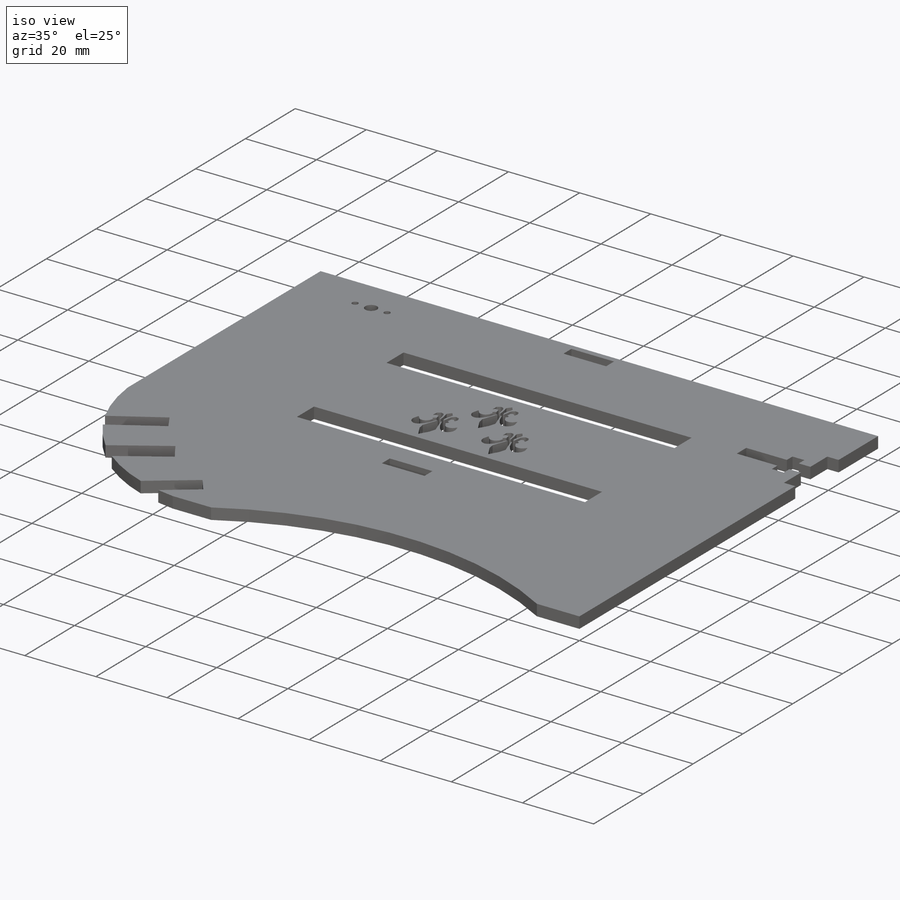
[diagram: iso view]
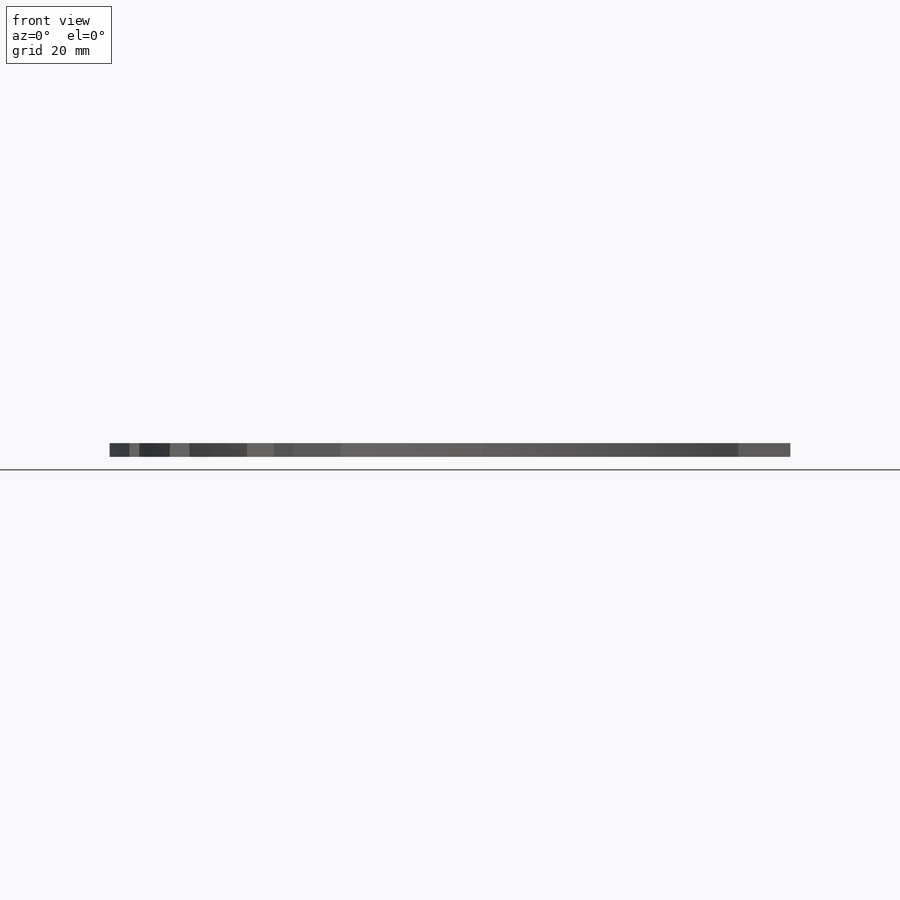
[diagram: front view]
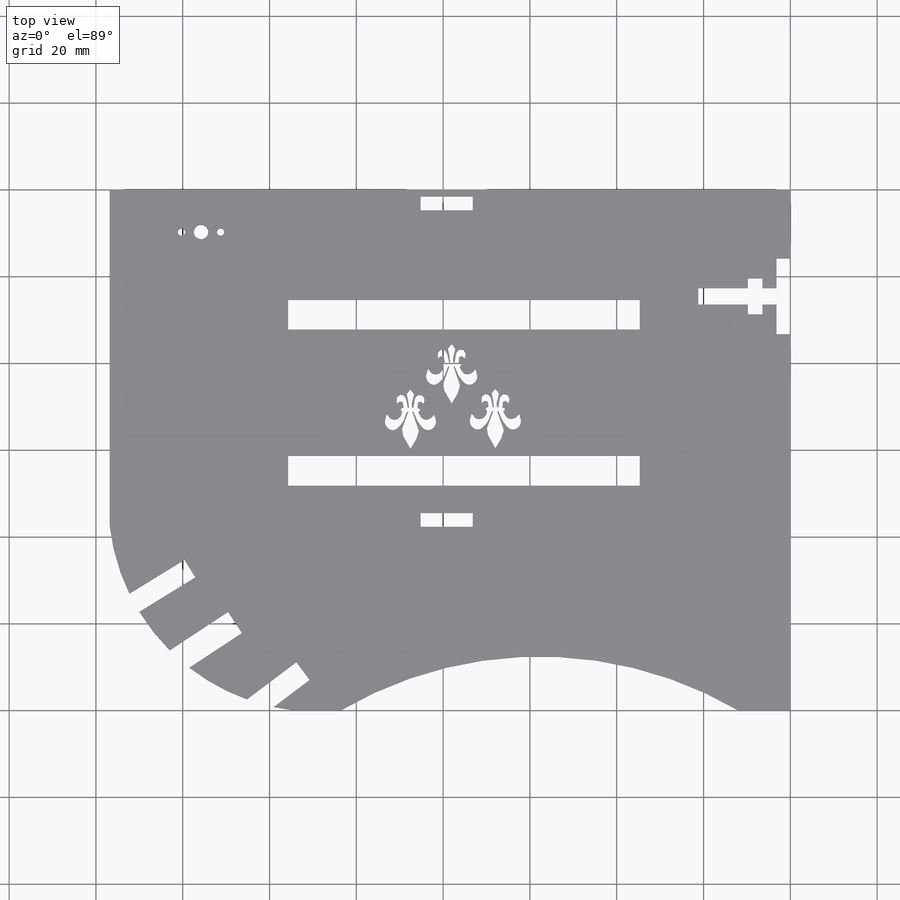
[diagram: top view]
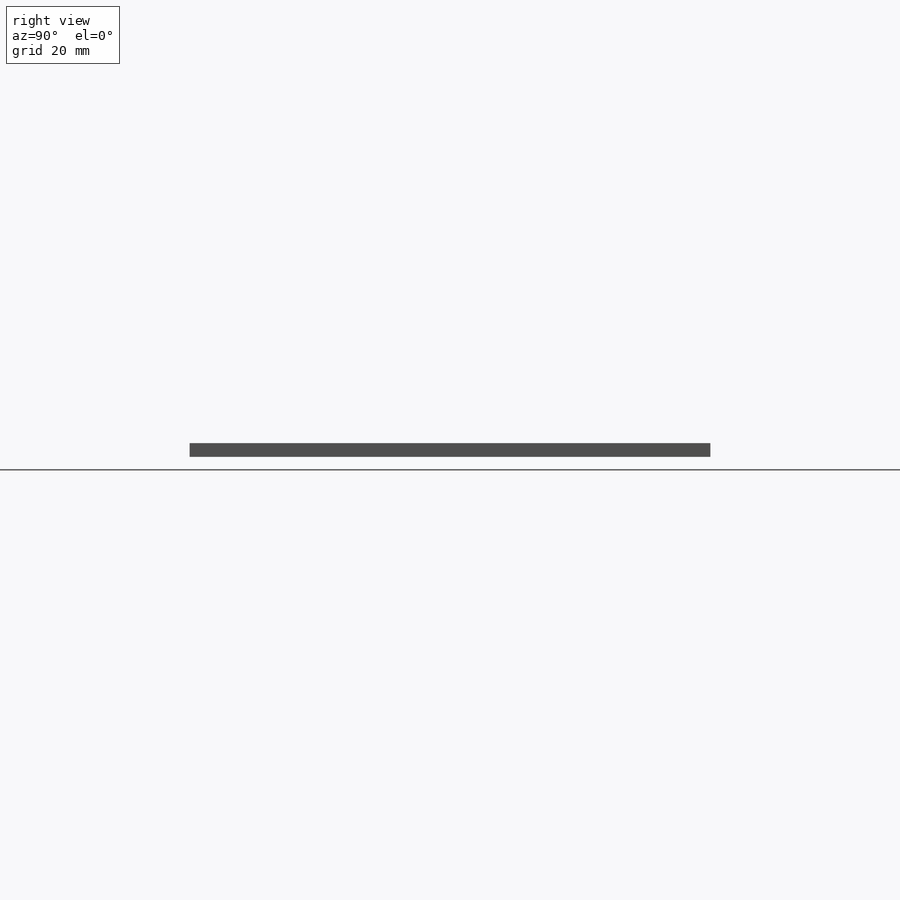
[diagram: right view]
SOLIDWORKS PART (.sldprt)
format: sldprt  version: not decoded by parser v0  size: 650,752 bytes
history: native  units: mm
features: sketch x18, cut_extrude x13, extrude x2, material x1 + 1 further entry (+13 scaffold rows collapsed)
feature tree (48):
  scaffold x13  (default folders/planes/origin — collapsed)
  material  "Material <not specified>"
  "Annotations"  RD5=3.81mm
  sketch  "Sketch3"  dims[D1=160.0mm D2=120.0mm]
  extrude  "Boss-Extrude1"  Depth=3.175mm
  sketch  "Sketch4"  dims[D1=3.175mm]
  cut_extrude  "Cut-Extrude1"  [1 undecoded]
  sketch  "Sketch5"  dims[D1=1.905mm D2=4.1402mm D3=6.604mm D4=11.43mm D5=1.905mm D6=~3.251232mm]
  cut_extrude  "Cut-Extrude2"  [1 undecoded]
  sketch  "Sketch6"  dims[D1=3.175mm D2=12.0mm D3=~1.590053mm D4=70.0mm]
  cut_extrude  "Cut-Extrude3"  [1 undecoded]
  sketch  "Sketch8"  dims[D1=3.17mm]
  cut_extrude  "Cut-Extrude4"  [1 undecoded]
  sketch  "Sketch10"  dims[D1=3.175mm]
  cut_extrude  "Cut-Extrude6"  Depth=3.175mm
  sketch  "Sketch9"  dims[D1=3.175mm]
  sketch  "Sketch11"
  extrude  "Boss-Extrude2"  Depth=3.175mm
  sketch  "Sketch12"  dims[D1=30.0mm]
  sketch  "Sketch14"  dims[D1=12.0mm D2=3.18mm]
  sketch  "Sketch15"  dims[D1=~72.946459mm]
  cut_extrude  "Cut-Extrude8"  [1 undecoded]
  sketch  "Sketch18"
  cut_extrude  "Cut-Extrude9"  [1 undecoded]
  sketch  "Sketch20"  dims[D1=~12.909669mm D2=~15.154765mm D3=~4.763364mm]
  cut_extrude  "Cut-Extrude10"  Depth=3.18mm
  sketch  "Sketch21"
  cut_extrude  "Cut-Extrude11"  Depth=3.18mm
  sketch  "Sketch22"  dims[D1=~6.858688mm D2=6.86mm]
  cut_extrude  "Cut-Extrude12"  Depth=3.18mm
  sketch  "Sketch23"
  cut_extrude  "Cut-Extrude13"  Depth=3.18mm
  sketch  "Sketch24"  dims[D3=~1.218766mm D1=9.77mm D2=9.0mm]
  cut_extrude  "Cut-Extrude14"  Depth=10mm
  sketch  "Sketch25"  dims[D1=~5.004947mm]
  cut_extrude  "Cut-Extrude15"  Depth=80.772mm
decode coverage: 23 of 33 modeling features carry decoded parameters; 1 rows unclassified (native names shown)
note: ~ marks probable driven/reference dimensions
note: 6 parameter values undecoded
summary: no parameter record found for 6 features
note: suppression state not decoded; provenance and decode notes live in map.json
